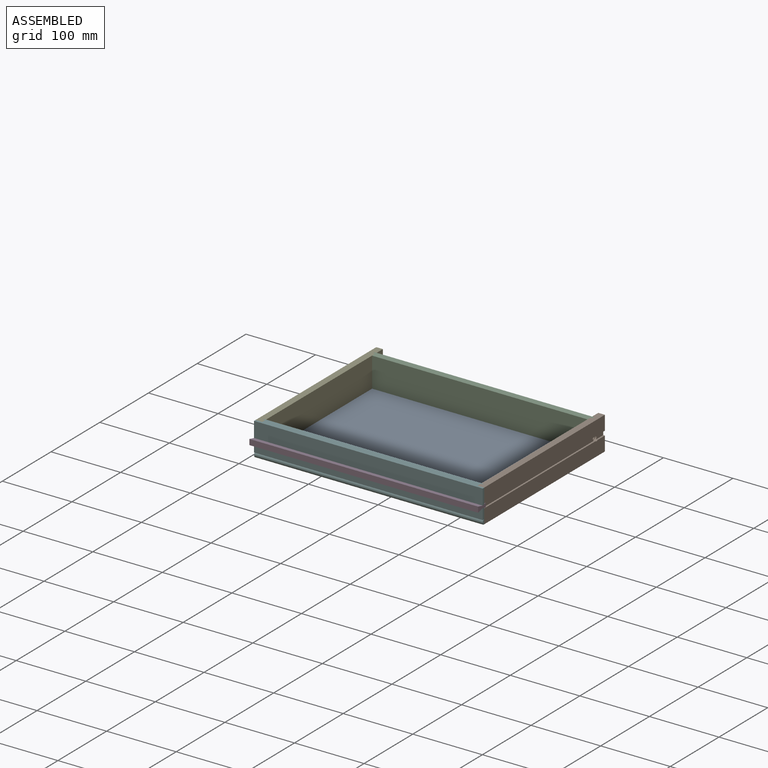
[diagram: assembled view]
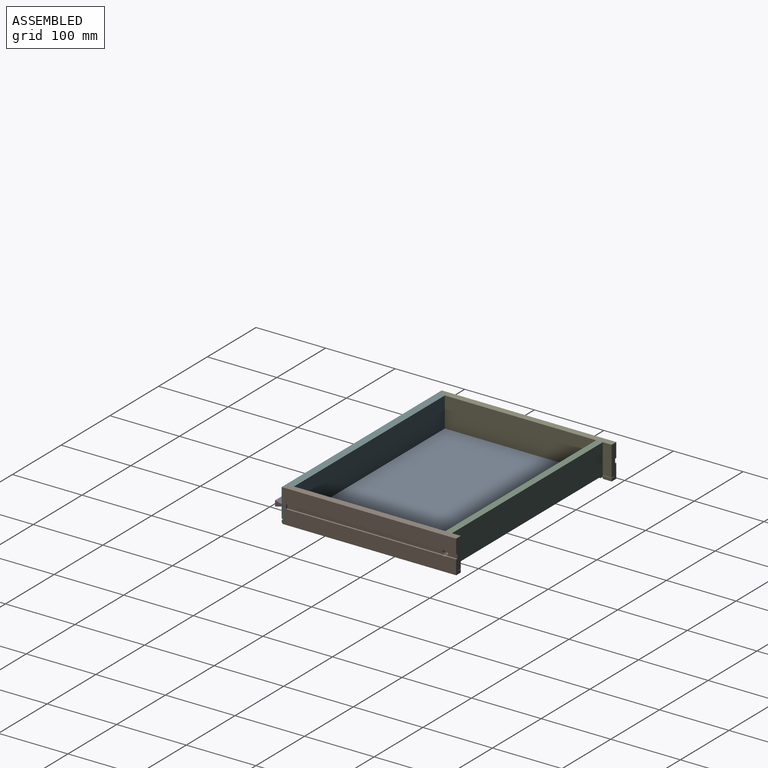
[diagram: assembled view, second angle]
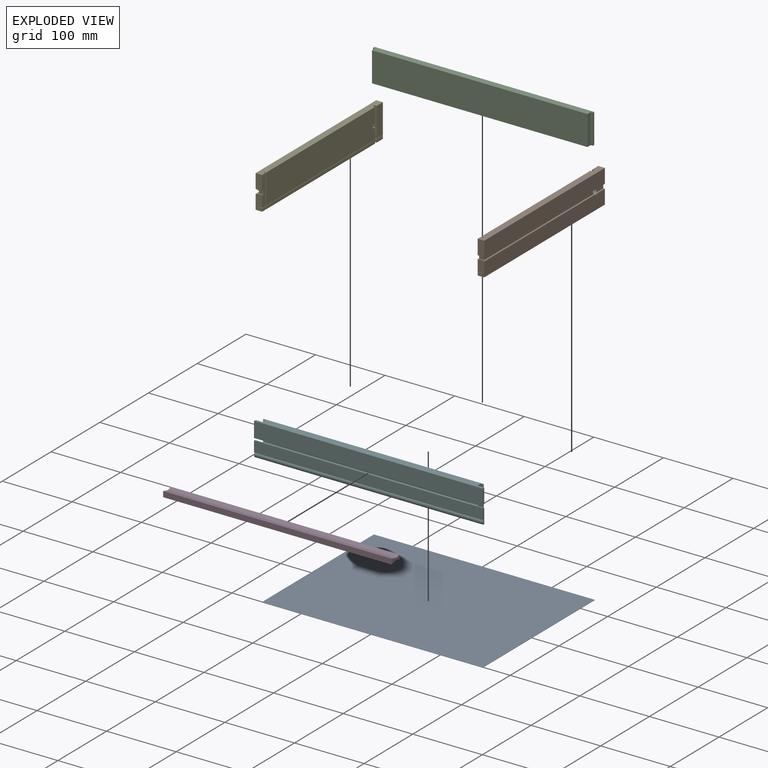
[diagram: exploded view]
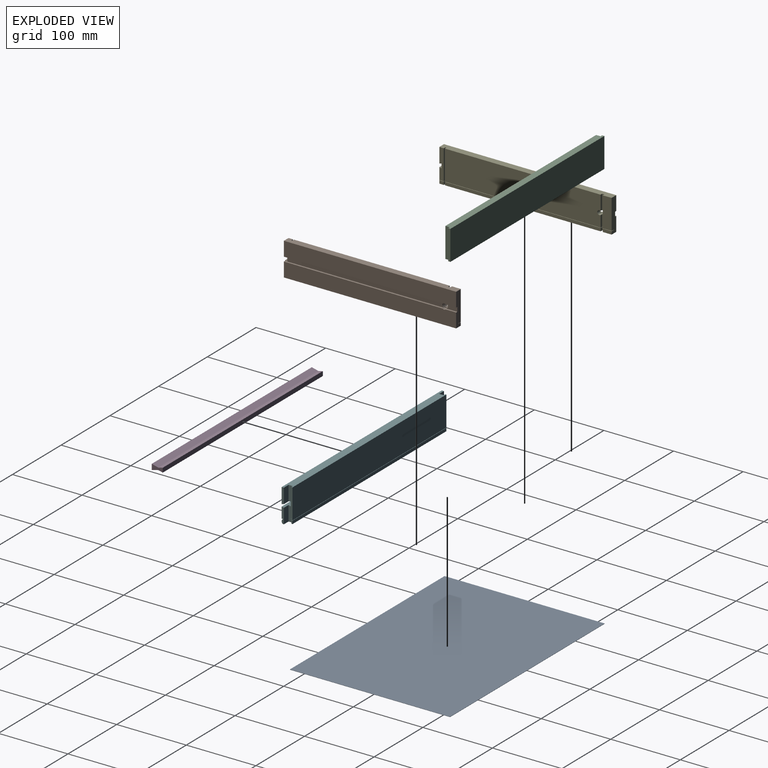
[diagram: exploded view, second angle]
ASSEMBLY  parts=6 mates=5
PART A: 6 faces, bbox 317.5x230.2x0.4 mm
  f0: plane 230.2x0.4mm, normal (1,0,0), area 91.4mm2, adj f1,f3,f4,f5
  f1: plane 317.5x0.4mm, normal (0,1,0), area 126mm2, adj f0,f2,f4,f5
  f2: plane 230.2x0.4mm, normal (-1,0,0), area 91.4mm2, adj f1,f3,f4,f5
  f3: plane 317.5x0.4mm, normal (0,-1,0), area 126mm2, adj f0,f2,f4,f5
  f4: plane 317.5x230.2mm, normal (0,0,-1), area 73088.6mm2, adj f0,f1,f2,f3
  f5: plane 317.5x230.2mm, normal (0,0,1), area 73088.6mm2, adj f0,f1,f2,f3
PART B: 43 faces, bbox 9.5x247.7x47.6 mm
  f0: plane 21.43x9.53mm, normal (0,-1,0), area 200.3mm2, adj f3,f6,f15,f16,f17,f32,f33,f34
  f1: plane 247.65x20.64mm, normal (1,0,0), area 5108.3mm2, adj f2,f18,f20,f24,f37,f41
  f2: plane 21.43x9.53mm, normal (0,-1,0), area 202.2mm2, adj f1,f4,f15,f18,f36,f37
  f3: plane 7.14x3.18mm, normal (0,0.24,0.97), area 23.4mm2, adj f0,f5,f15,f38
  f4: plane 7.14x3.18mm, normal (0,0.24,-0.97), area 23.4mm2, adj f2,f5,f15,f36
  f5: plane 7.14x6.35mm, normal (0,-1,0), area 45.4mm2, adj f3,f4,f15,f35
  f6: plane 6.35x4.36mm, normal (-1,0,0), area 27.7mm2, adj f0,f17,f29,f32
  f7: plane 223.84x4.36mm, normal (-1,0,0), area 975.1mm2, adj f17,f25,f31,f32
  f8: plane 12.7x4.36mm, normal (-1,0,0), area 55.3mm2, adj f17,f20,f26,f32
  f9: plane 16.3x3.18mm, normal (0,1,0), area 51.8mm2, adj f11,f19,f22,f33
  f10: plane 42.86x3.18mm, normal (0,-1,0), area 136.1mm2, adj f11,f18,f21,f33
  f11: plane 42.86x3.18mm, normal (-1,0,0), area 129.9mm2, adj f9,f10,f18,f22,f27,f33
  f12: plane 42.86x3.18mm, normal (0,1,0), area 136.1mm2, adj f13,f15,f18,f33
  f13: plane 42.86x1.59mm, normal (-1,0,0), area 68mm2, adj f12,f14,f18,f33
  f14: plane 42.86x3.18mm, normal (0,-1,0), area 136.1mm2, adj f13,f18,f19,f33
  f15: plane 42.86x6.35mm, normal (-1,0,0), area 254.5mm2, adj f0,f2,f3,f4,f5,f12,f18,f33
  f16: plane 247.65x20.64mm, normal (1,0,0), area 5108.3mm2, adj f0,f17,f20,f24,f39,f42
  f17: plane 247.65x9.53mm, normal (0,0,-1), area 2343.7mm2, adj f0,f6,f7,f8,f16,f20,f25,f26
  f18: plane 247.65x9.53mm, normal (0,0,1), area 2343.7mm2, adj f1,f2,f10,f11,f12,f13,f14,f15
  f19: plane 223.84x42.86mm, normal (-1,0,0), area 9568.8mm2, adj f9,f14,f18,f22,f27,f33
  f20: plane 47.63x9.53mm, normal (0,1,0), area 436.6mm2, adj f1,f8,f16,f17,f18,f21,f32,f33
  f21: plane 42.86x12.7mm, normal (-1,0,0), area 544.4mm2, adj f10,f18,f20,f33
  f22: cylinder r=3.17mm len=6.35mm, axis (1,0,0), area 73.9mm2, adj f9,f11,f19,f23,f27
  f23: plane 7.94x7.94mm, normal (1,0,0), area 17.8mm2, adj f22,f24
  f24: cylinder r=3.97mm len=7.94mm, axis (1,0,0), area 83.7mm2, adj f1,f16,f23,f35,f37,f39,f40,f41
  f25: plane 4.36x3.18mm, normal (0,1,0), area 13.8mm2, adj f7,f17,f28,f32
  f26: plane 4.36x3.18mm, normal (0,-1,0), area 13.8mm2, adj f8,f17,f28,f32
  f27: plane 21.06x3.18mm, normal (0,1,0), area 66.9mm2, adj f11,f18,f19,f22
  f28: plane 4.36x3.18mm, normal (-1,0,0), area 13.8mm2, adj f17,f25,f26,f32
  f29: plane 4.36x3.18mm, normal (0,1,0), area 13.8mm2, adj f6,f17,f30,f32
  f30: plane 4.36x1.59mm, normal (-1,0,0), area 6.9mm2, adj f17,f29,f31,f32
  f31: plane 4.36x3.18mm, normal (0,-1,0), area 13.8mm2, adj f7,f17,f30,f32
  f32: plane 247.65x4.76mm, normal (0,0,1), area 1164.3mm2, adj f0,f6,f7,f8,f20,f25,f26,f28
  f33: plane 247.65x4.76mm, normal (0,0,-1), area 1164.3mm2, adj f0,f9,f10,f11,f12,f13,f14,f15
  f34: plane 247.65x0.41mm, normal (-1,0,0), area 100.6mm2, adj f0,f20,f32,f33
  f35: plane 224.63x6.35mm, normal (1,0,0), area 1419.4mm2, adj f5,f24,f37,f39
  f36: plane 3.18x0.79mm, normal (1,0,0), area 1.3mm2, adj f2,f4,f37
  f37: plane 227.81x2.38mm, normal (0,0,-1), area 542.5mm2, adj f1,f2,f24,f35,f36
  f38: plane 3.18x0.79mm, normal (1,0,0), area 1.3mm2, adj f0,f3,f39
  f39: plane 227.81x2.38mm, normal (0,0,1), area 542.5mm2, adj f0,f16,f24,f35,f38
  f40: plane 15.08x6.35mm, normal (1,0,0), area 88.7mm2, adj f20,f24,f41,f42
  f41: plane 15.08x2.38mm, normal (0,0,-1), area 35.9mm2, adj f1,f20,f24,f40
  f42: plane 15.08x2.38mm, normal (0,0,1), area 35.9mm2, adj f16,f20,f24,f40
PART C: 10 faces, bbox 315.9x9.5x42.9 mm
  f0: plane 42.86x6.35mm, normal (1,0,0), area 272.2mm2, adj f1,f3,f5,f6
  f1: plane 315.91x9.53mm, normal (0,0,1), area 2968.7mm2, adj f0,f2,f4,f5,f6,f7,f8,f9
  f2: plane 42.86x6.35mm, normal (-1,0,0), area 272.2mm2, adj f1,f3,f5,f9
  f3: plane 315.91x9.53mm, normal (0,0,-1), area 2968.7mm2, adj f0,f2,f4,f5,f6,f7,f8,f9
  f4: plane 315.91x42.86mm, normal (0,1,0), area 13540.8mm2, adj f1,f3,f7,f8
  f5: plane 309.56x42.86mm, normal (0,-1,0), area 13268.6mm2, adj f0,f1,f2,f3
  f6: plane 42.86x3.18mm, normal (0,-1,0), area 136.1mm2, adj f0,f1,f3,f7
  f7: plane 42.86x3.18mm, normal (1,0,0), area 136.1mm2, adj f1,f3,f4,f6
  f8: plane 42.86x3.18mm, normal (-1,0,0), area 136.1mm2, adj f1,f3,f4,f9
  f9: plane 42.86x3.18mm, normal (0,-1,0), area 136.1mm2, adj f1,f2,f3,f8
PART D: 8 faces, bbox 328.6x15.9x7.9 mm
  f0: plane 328.61x6.35mm, normal (0,1,0), area 2086.7mm2, adj f1,f5,f6,f7
  f1: plane 328.61x6.35mm, normal (0,-0.24,0.97), area 2150.6mm2, adj f0,f2,f6,f7
  f2: plane 328.61x9.53mm, normal (0,0.24,0.97), area 3225.9mm2, adj f1,f3,f6,f7
  f3: plane 328.61x7.93mm, normal (0,-1,0), area 2607mm2, adj f2,f4,f6,f7
  f4: plane 328.61x9.53mm, normal (0,0.24,-0.97), area 3225.9mm2, adj f3,f5,f6,f7
  f5: plane 328.61x6.35mm, normal (0,-0.24,-0.97), area 2150.6mm2, adj f0,f4,f6,f7
  f6: plane 15.88x7.93mm, normal (1,0,0), area 83.2mm2, adj f0,f1,f2,f3,f4,f5
  f7: plane 15.88x7.93mm, normal (-1,0,0), area 83.2mm2, adj f0,f1,f2,f3,f4,f5
PART E: 43 faces, bbox 9.5x247.7x47.6 mm
  f0: plane 21.43x9.53mm, normal (0,-1,0), area 200.3mm2, adj f3,f6,f15,f16,f17,f32,f33,f34
  f1: plane 247.65x20.64mm, normal (-1,0,0), area 5108.3mm2, adj f2,f18,f20,f24,f37,f41
  f2: plane 21.43x9.53mm, normal (0,-1,0), area 202.2mm2, adj f1,f4,f15,f18,f36,f37
  f3: plane 7.14x3.18mm, normal (0,0.24,0.97), area 23.4mm2, adj f0,f5,f15,f38
  f4: plane 7.14x3.18mm, normal (0,0.24,-0.97), area 23.4mm2, adj f2,f5,f15,f36
  f5: plane 7.14x6.35mm, normal (0,-1,0), area 45.4mm2, adj f3,f4,f15,f35
  f6: plane 6.35x4.36mm, normal (1,0,0), area 27.7mm2, adj f0,f17,f29,f32
  f7: plane 223.84x4.36mm, normal (1,0,0), area 975.1mm2, adj f17,f25,f31,f32
  f8: plane 12.7x4.36mm, normal (1,0,0), area 55.3mm2, adj f17,f20,f26,f32
  f9: plane 16.3x3.18mm, normal (0,1,0), area 51.8mm2, adj f11,f19,f22,f33
  f10: plane 42.86x3.18mm, normal (0,-1,0), area 136.1mm2, adj f11,f18,f21,f33
  f11: plane 42.86x3.18mm, normal (1,0,0), area 129.9mm2, adj f9,f10,f18,f22,f27,f33
  f12: plane 42.86x3.18mm, normal (0,1,0), area 136.1mm2, adj f13,f15,f18,f33
  f13: plane 42.86x1.59mm, normal (1,0,0), area 68mm2, adj f12,f14,f18,f33
  f14: plane 42.86x3.18mm, normal (0,-1,0), area 136.1mm2, adj f13,f18,f19,f33
  f15: plane 42.86x6.35mm, normal (1,0,0), area 254.5mm2, adj f0,f2,f3,f4,f5,f12,f18,f33
  f16: plane 247.65x20.64mm, normal (-1,0,0), area 5108.3mm2, adj f0,f17,f20,f24,f39,f42
  f17: plane 247.65x9.53mm, normal (0,0,-1), area 2343.7mm2, adj f0,f6,f7,f8,f16,f20,f25,f26
  f18: plane 247.65x9.53mm, normal (0,0,1), area 2343.7mm2, adj f1,f2,f10,f11,f12,f13,f14,f15
  f19: plane 223.84x42.86mm, normal (1,0,0), area 9568.8mm2, adj f9,f14,f18,f22,f27,f33
  f20: plane 47.63x9.53mm, normal (0,1,0), area 436.6mm2, adj f1,f8,f16,f17,f18,f21,f32,f33
  f21: plane 42.86x12.7mm, normal (1,0,0), area 544.4mm2, adj f10,f18,f20,f33
  f22: cylinder r=3.17mm len=6.35mm, axis (-1,0,0), area 73.9mm2, adj f9,f11,f19,f23,f27
  f23: plane 7.94x7.94mm, normal (-1,0,0), area 17.8mm2, adj f22,f24
  f24: cylinder r=3.97mm len=7.94mm, axis (-1,0,0), area 83.7mm2, adj f1,f16,f23,f35,f37,f39,f40,f41
  f25: plane 4.36x3.18mm, normal (0,1,0), area 13.8mm2, adj f7,f17,f28,f32
  f26: plane 4.36x3.18mm, normal (0,-1,0), area 13.8mm2, adj f8,f17,f28,f32
  f27: plane 21.06x3.18mm, normal (0,1,0), area 66.9mm2, adj f11,f18,f19,f22
  f28: plane 4.36x3.18mm, normal (1,0,0), area 13.8mm2, adj f17,f25,f26,f32
  f29: plane 4.36x3.18mm, normal (0,1,0), area 13.8mm2, adj f6,f17,f30,f32
  f30: plane 4.36x1.59mm, normal (1,0,0), area 6.9mm2, adj f17,f29,f31,f32
  f31: plane 4.36x3.18mm, normal (0,-1,0), area 13.8mm2, adj f7,f17,f30,f32
  f32: plane 247.65x4.76mm, normal (0,0,1), area 1164.3mm2, adj f0,f6,f7,f8,f20,f25,f26,f28
  f33: plane 247.65x4.76mm, normal (0,0,-1), area 1164.3mm2, adj f0,f9,f10,f11,f12,f13,f14,f15
  f34: plane 247.65x0.41mm, normal (1,0,0), area 100.6mm2, adj f0,f20,f32,f33
  f35: plane 224.63x6.35mm, normal (-1,0,0), area 1419.4mm2, adj f5,f24,f37,f39
  f36: plane 3.18x0.79mm, normal (-1,0,0), area 1.3mm2, adj f2,f4,f37
  f37: plane 227.81x2.38mm, normal (0,0,-1), area 542.5mm2, adj f1,f2,f24,f35,f36
  f38: plane 3.18x0.79mm, normal (-1,0,0), area 1.3mm2, adj f0,f3,f39
  f39: plane 227.81x2.38mm, normal (0,0,1), area 542.5mm2, adj f0,f16,f24,f35,f38
  f40: plane 15.08x6.35mm, normal (-1,0,0), area 88.7mm2, adj f20,f24,f41,f42
  f41: plane 15.08x2.38mm, normal (0,0,-1), area 35.9mm2, adj f1,f20,f24,f40
  f42: plane 15.08x2.38mm, normal (0,0,1), area 35.9mm2, adj f16,f20,f24,f40
PART F: 32 faces, bbox 328.6x11.1x47.6 mm
  f0: plane 22.22x3.18mm, normal (-1,0,0), area 65.9mm2, adj f1,f6,f15,f23,f30,f31
  f1: plane 328.61x9.53mm, normal (0,0,-1), area 2988.9mm2, adj f0,f3,f4,f16,f18,f20,f22,f23
  f2: plane 315.91x42.86mm, normal (0,1,0), area 13540.8mm2, adj f5,f10,f19,f28
  f3: plane 315.91x4.36mm, normal (0,1,0), area 1376.1mm2, adj f1,f9,f18,f27
  f4: plane 22.22x3.18mm, normal (1,0,0), area 65.9mm2, adj f1,f6,f15,f16,f30,f31
  f5: plane 328.61x11.11mm, normal (0,0,1), area 3510.6mm2, adj f2,f12,f13,f14,f17,f19,f21,f22
  f6: plane 328.61x6.35mm, normal (0,0.24,0.97), area 2088.2mm2, adj f0,f4,f7,f15,f16,f22,f23,f29
  f7: plane 309.56x6.35mm, normal (0,-1,0), area 1965.7mm2, adj f6,f8,f22,f29
  f8: plane 328.61x6.35mm, normal (0,0.24,-0.97), area 2088.2mm2, adj f7,f12,f13,f14,f17,f22,f24,f29
  f9: plane 315.91x4.76mm, normal (0,0,1), area 1484.4mm2, adj f3,f11,f18,f20,f22,f25,f27,f29
  f10: plane 315.91x4.76mm, normal (0,0,-1), area 1484.4mm2, adj f2,f11,f19,f21,f22,f26,f28,f29
  f11: plane 309.56x0.41mm, normal (0,1,0), area 125.8mm2, adj f9,f10,f22,f29
  f12: plane 22.22x3.18mm, normal (-1,0,0), area 69.3mm2, adj f5,f8,f13,f24
  f13: plane 328.61x22.22mm, normal (0,-1,0), area 7302mm2, adj f5,f8,f12,f14
  f14: plane 22.22x3.18mm, normal (1,0,0), area 69.3mm2, adj f5,f8,f13,f17
  f15: plane 328.61x15.66mm, normal (0,-1,0), area 5145.4mm2, adj f0,f4,f6,f31
  f16: plane 21.43x9.53mm, normal (0,1,0), area 204.1mm2, adj f1,f4,f6,f22
  f17: plane 21.43x9.53mm, normal (0,1,0), area 204.1mm2, adj f5,f8,f14,f22
  f18: plane 4.36x1.59mm, normal (1,0,0), area 6.9mm2, adj f1,f3,f9,f20
  f19: plane 42.86x1.59mm, normal (1,0,0), area 68mm2, adj f2,f5,f10,f21
  f20: plane 4.36x3.18mm, normal (0,-1,0), area 13.8mm2, adj f1,f9,f18,f22
  f21: plane 42.86x3.18mm, normal (0,-1,0), area 136.1mm2, adj f5,f10,f19,f22
  f22: plane 47.63x6.35mm, normal (1,0,0), area 283.5mm2, adj f1,f5,f6,f7,f8,f9,f10,f11
  f23: plane 21.43x9.53mm, normal (0,1,0), area 204.1mm2, adj f0,f1,f6,f29
  f24: plane 21.43x9.53mm, normal (0,1,0), area 204.1mm2, adj f5,f8,f12,f29
  f25: plane 4.36x3.18mm, normal (0,-1,0), area 13.8mm2, adj f1,f9,f27,f29
  f26: plane 42.86x3.18mm, normal (0,-1,0), area 136.1mm2, adj f5,f10,f28,f29
  f27: plane 4.36x1.59mm, normal (-1,0,0), area 6.9mm2, adj f1,f3,f9,f25
  f28: plane 42.86x1.59mm, normal (-1,0,0), area 68mm2, adj f2,f5,f10,f26
  f29: plane 47.63x6.35mm, normal (-1,0,0), area 283.5mm2, adj f1,f5,f6,f7,f8,f9,f10,f11
  f30: cylinder r=3.97mm len=328.61mm, axis (1,0,0), area 2543.4mm2, adj f0,f1,f4,f31
  f31: plane 328.61x1.9mm, normal (0,0,-1), area 624.9mm2, adj f0,f4,f15,f30
PLACE A t=(10.55,102.5,181.12)mm
PLACE B t=(174.86,-17.35,100.16)mm
PLACE C t=(10.55,-96.73,126.35)mm
PLACE D t=(10.55,-20.53,123.97)mm
PLACE E t=(-1.35,-17.35,100.16)mm
PLACE F t=(10.55,-20.53,123.97)mm
MATE fastened E.f18 <-> F.f5  axis (0,0,1) through (-144.23,-14.18,147.78)mm
MATE fastened D.f0 <-> F.f7  axis (0,1,0) through (10.55,-14.18,123.97)mm
MATE fastened B.f18 <-> F.f5  axis (0,0,1) through (165.33,-14.18,147.78)mm
MATE fastened C.f1 <-> B.f18  axis (0,0,1) through (165.33,214.42,147.78)mm
MATE fastened A.f5 <-> C.f3  axis (0,0,1) through (10.55,217.6,104.92)mm
